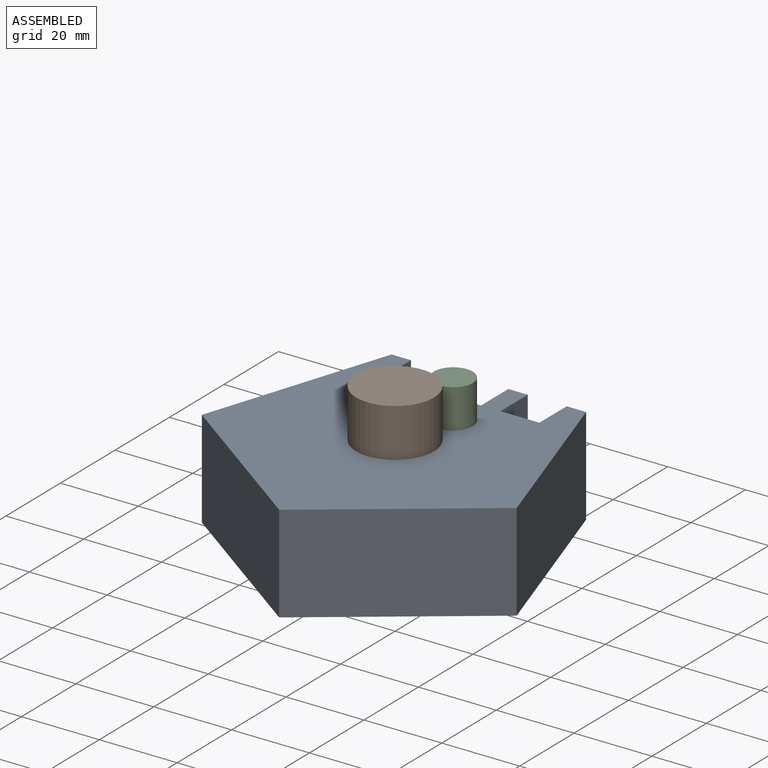
[diagram: assembled view]
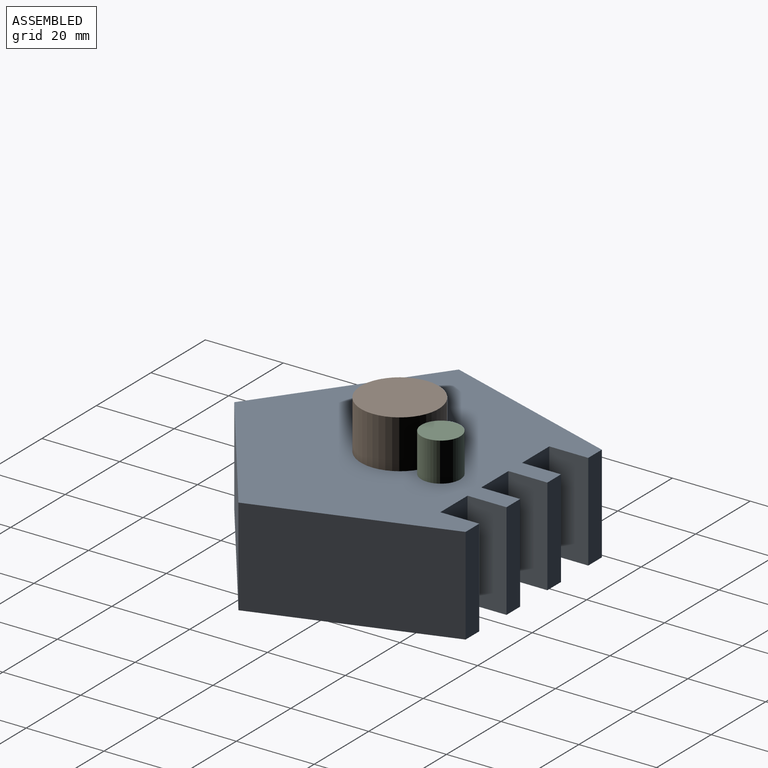
[diagram: assembled view, second angle]
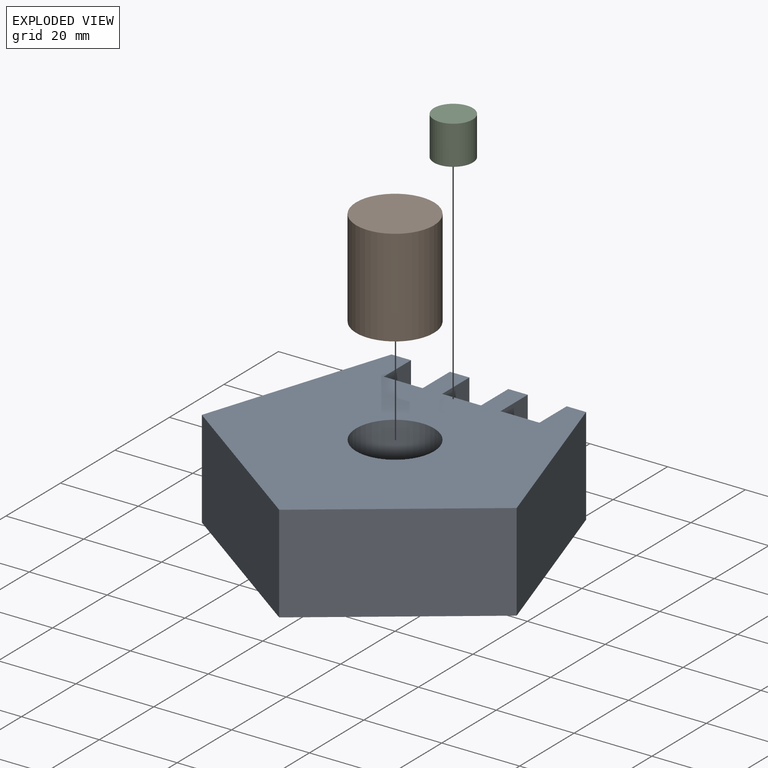
[diagram: exploded view]
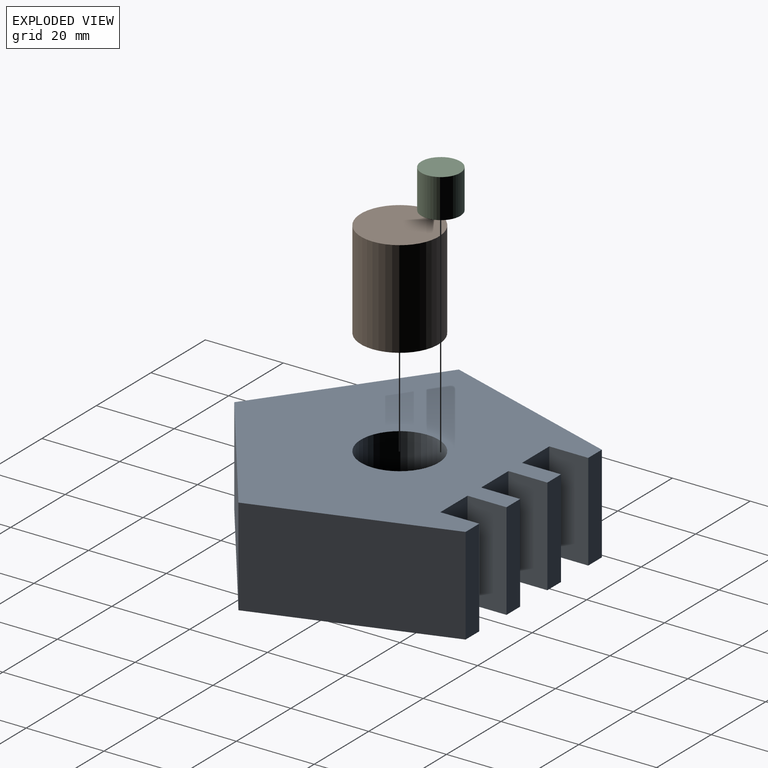
[diagram: exploded view, second angle]
ASSEMBLY  parts=3 mates=2
PART A: 21 faces, bbox 80.9x76.9x25 mm
  f0: plane 25x5mm, normal (0,1,0), area 125mm2, adj f3,f9,f15,f17
  f1: plane 25x5mm, normal (0,1,0), area 125mm2, adj f3,f9,f12,f14
  f2: plane 25x5mm, normal (0,1,0), area 125mm2, adj f3,f7,f9,f11
  f3: plane 80.9x76.94mm, normal (0,0,-1), area 4001.2mm2, adj f0,f1,f2,f4,f5,f6,f7,f8
  f4: plane 47.55x25mm, normal (-0.95,0.31,0), area 1250mm2, adj f3,f5,f8,f9
  f5: plane 40.45x29.39mm, normal (-0.59,-0.81,0), area 1250mm2, adj f3,f4,f6,f9
  f6: plane 40.45x29.39mm, normal (0.59,-0.81,0), area 1250mm2, adj f3,f5,f7,f9
  f7: plane 47.55x25mm, normal (0.95,0.31,0), area 1250mm2, adj f2,f3,f6,f9
  f8: plane 25x5mm, normal (0,1,0), area 125mm2, adj f3,f4,f9,f18
  f9: plane 80.9x76.94mm, normal (0,0,1), area 3687mm2, adj f0,f1,f2,f4,f5,f6,f7,f8
  f10: plane 25x10mm, normal (0,1,0), area 250mm2, adj f3,f9,f11,f12
  f11: plane 25x10mm, normal (-1,0,0), area 250mm2, adj f2,f3,f9,f10
  f12: plane 25x10mm, normal (1,0,0), area 250mm2, adj f1,f3,f9,f10
  f13: plane 25x10mm, normal (0,1,0), area 250mm2, adj f3,f9,f14,f15
  f14: plane 25x10mm, normal (-1,0,0), area 250mm2, adj f1,f3,f9,f13
  f15: plane 25x10mm, normal (1,0,0), area 250mm2, adj f0,f3,f9,f13
  f16: plane 25x10mm, normal (0,1,0), area 250mm2, adj f3,f9,f17,f18
  f17: plane 25x10mm, normal (-1,0,0), area 250mm2, adj f0,f3,f9,f16
  f18: plane 25x10mm, normal (1,0,0), area 250mm2, adj f3,f8,f9,f16
  f19: cylinder r=10mm len=20mm, axis (0,0,-1), area 785.4mm2, adj f9,f20
  f20: plane 20x20mm, normal (0,0,1), area 314.2mm2, adj f19
PART B: 3 faces, bbox 20x20x25 mm
  f0: cylinder r=10mm len=25mm, axis (0,0,-1), area 1570.8mm2, adj f1,f2
  f1: plane 20x20mm, normal (0,0,1), area 314.2mm2, adj f0
  f2: plane 20x20mm, normal (0,0,-1), area 314.2mm2, adj f0
PART C: 3 faces, bbox 10x10x10 mm
  f0: cylinder r=5mm len=10mm, axis (0,0,-1), area 314.2mm2, adj f1,f2
  f1: plane 10x10mm, normal (0,0,1), area 78.5mm2, adj f0
  f2: plane 10x10mm, normal (0,0,-1), area 78.5mm2, adj f0
PLACE A at identity fixed
PLACE B at identity
PLACE C rot(axis=(0,0,-1),97.9deg) t=(7.16,28.97,0.5)mm
MATE fastened B.f0 <-> A.f19  axis (0,0,-1) through (0,0,12.5)mm
MATE planar C.f0 <-> B.f0  axis (0,0,1) through (5.09,14.11,35.5)mm
